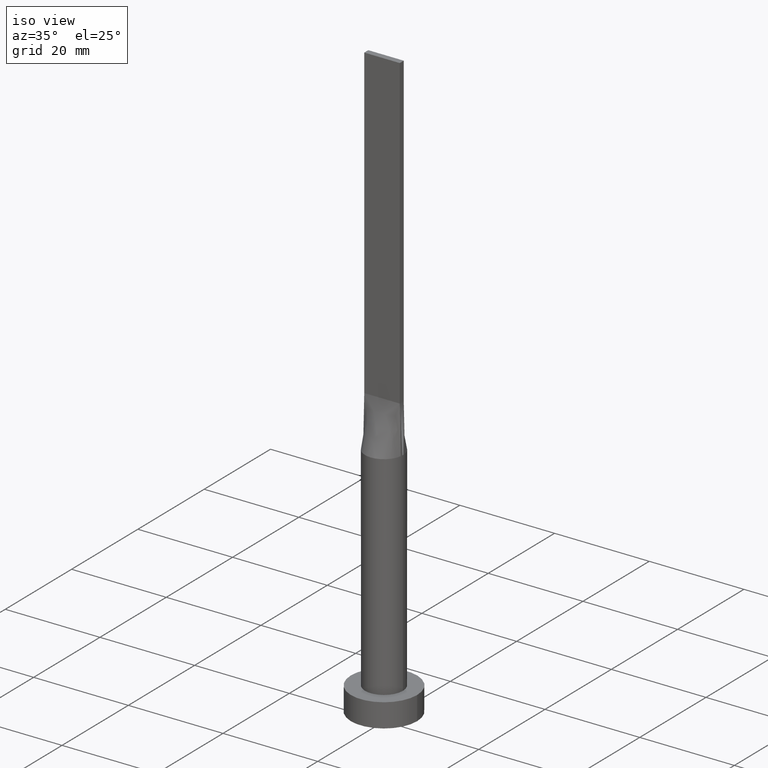
[diagram: clean part render]
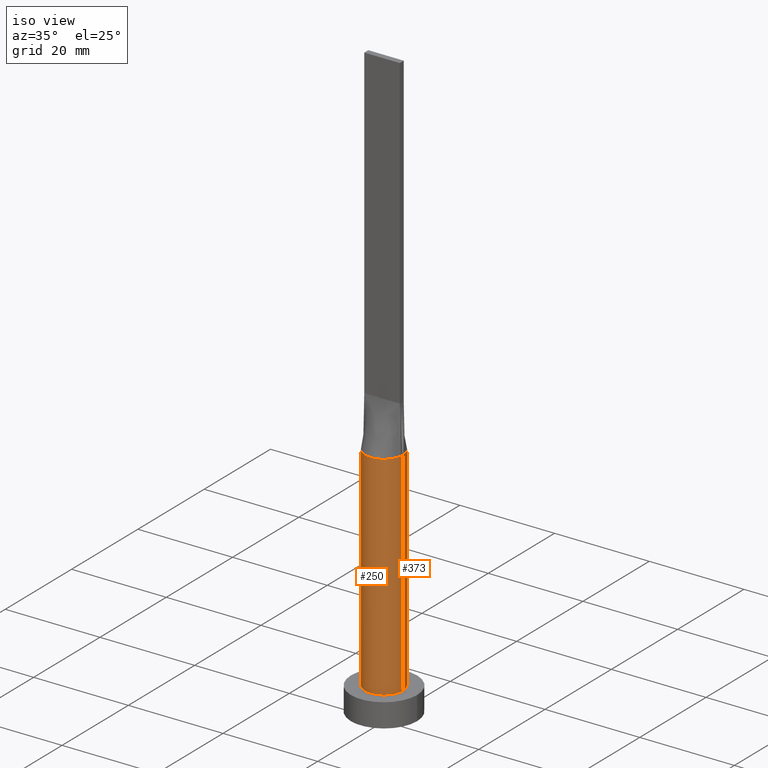
[diagram: same view with one multi-face feature highlighted, each face labeled with its STEP entity id]
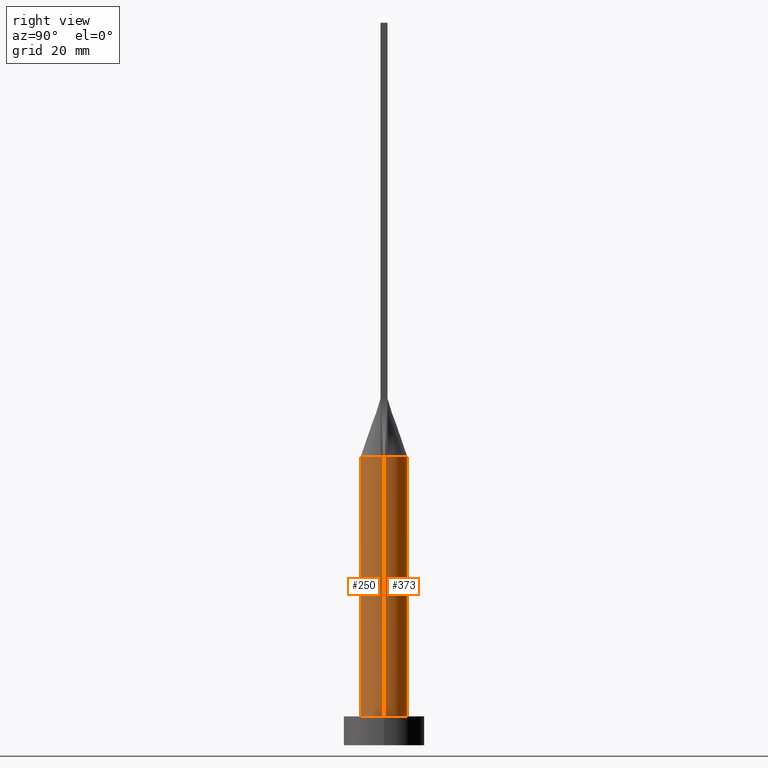
[diagram: same view with one multi-face feature highlighted, each face labeled with its STEP entity id]
A machine part, iso view. The highlighted faces form ONE feature: a constant-radius fillet chain: 2 tangent blend faces with common blend radius 4 mm. The faces share edges in the B-rep.
A second angle (right view) of the same feature is appended — it is thin or edge-on in the first view.
Their STEP definitions:
[1] entity #373 (Cylinder):
#1 = CARTESIAN_POINT ( 'NONE',  ( 4.000000000000000000, 4.898587196589411843E-16, 49.99999999999999289 ) ) ;
#15 = AXIS2_PLACEMENT_3D ( 'NONE', #472, #385, #81 ) ;
#22 = CARTESIAN_POINT ( 'NONE',  ( -3.999842262273348048, -9.740943882706924690E-16, 49.99999999999999289 ) ) ;
#25 = VERTEX_POINT ( 'NONE', #265 ) ;
#27 = DIRECTION ( 'NONE',  ( -1.000000000000000000, 0.000000000000000000, 0.000000000000000000 ) ) ;
#33 = CARTESIAN_POINT ( 'NONE',  ( 3.950097303404374038, 0.6320148730971578699, 49.99999999999999289 ) ) ;
#62 = CARTESIAN_POINT ( 'NONE',  ( 2.553164211252348714, 3.116528153703943538, 49.99999999999999289 ) ) ;
#64 = DIRECTION ( 'NONE',  ( -0.000000000000000000, -0.000000000000000000, -1.000000000000000000 ) ) ;
#67 = CARTESIAN_POINT ( 'NONE',  ( 3.461914487322979017, 2.043998057340944197, 49.99999999999997158 ) ) ;
#71 = EDGE_CURVE ( 'NONE', #577, #288, #165, .T. ) ;
#78 = CARTESIAN_POINT ( 'NONE',  ( -2.127794970397209884, 3.430476893735948440, 49.99999999999999289 ) ) ;
#81 = DIRECTION ( 'NONE',  ( 1.000000000000000000, 0.000000000000000000, 0.000000000000000000 ) ) ;
#105 = CARTESIAN_POINT ( 'NONE',  ( 3.950097303404374038, 0.6320148730971578699, 49.99999999999999289 ) ) ;
#117 = CARTESIAN_POINT ( 'NONE',  ( -3.800365609718893811, 1.311488165564686392, 49.99999999999999289 ) ) ;
#122 = VERTEX_POINT ( 'NONE', #22 ) ;
#124 = CARTESIAN_POINT ( 'NONE',  ( 0.5684794080625145130, 4.000000000000000000, 49.99999999999999289 ) ) ;
#128 = AXIS2_PLACEMENT_3D ( 'NONE', #399, #579, #540 ) ;
#138 = VECTOR ( 'NONE', #64, 1000.000000000000000 ) ;
#153 = EDGE_CURVE ( 'NONE', #122, #447, #239, .T. ) ;
#161 = DIRECTION ( 'NONE',  ( -0.000000000000000000, -0.000000000000000000, -1.000000000000000000 ) ) ;
#162 = CARTESIAN_POINT ( 'NONE',  ( -3.950102418235696522, 0.6320155757311000100, 49.99999999999999289 ) ) ;
#165 = CIRCLE ( 'NONE', #128, 4.000000000000000000 ) ;
#169 = ORIENTED_EDGE ( 'NONE', *, *, #153, .F. ) ;
#171 = ORIENTED_EDGE ( 'NONE', *, *, #449, .T. ) ;
#183 = VECTOR ( 'NONE', #438, 1000.000000000000000 ) ;
#190 = VERTEX_POINT ( 'NONE', #205 ) ;
#197 = CARTESIAN_POINT ( 'NONE',  ( 3.999842262273348936, 9.852009208038395466E-16, 49.99999999999999289 ) ) ;
#205 = CARTESIAN_POINT ( 'NONE',  ( 4.000000000000000000, 4.898587196589411843E-16, 5.000000000000000000 ) ) ;
#206 = CARTESIAN_POINT ( 'NONE',  ( -3.461914487322979905, 2.043998057340944197, 50.00000000000000711 ) ) ;
#211 = CARTESIAN_POINT ( 'NONE',  ( 0.000000000000000000, 0.000000000000000000, 49.99999999999999289 ) ) ;
#217 = EDGE_CURVE ( 'NONE', #288, #25, #434, .T. ) ;
#218 = AXIS2_PLACEMENT_3D ( 'NONE', #211, #523, #286 ) ;
#239 = LINE ( 'NONE', #457, #138 ) ;
#246 = CARTESIAN_POINT ( 'NONE',  ( -3.897760447583618504, 0.9569750049467115049, 50.00000000000001421 ) ) ;
#252 = ORIENTED_EDGE ( 'NONE', *, *, #257, .F. ) ;
#257 = EDGE_CURVE ( 'NONE', #25, #122, #439, .T. ) ;
#265 = CARTESIAN_POINT ( 'NONE',  ( -3.950102418235696522, 0.6320155757311000100, 49.99999999999999289 ) ) ;
#279 = CARTESIAN_POINT ( 'NONE',  ( 3.219262664220058134, 2.422342486356523938, 49.99999999999998579 ) ) ;
#280 = EDGE_CURVE ( 'NONE', #190, #447, #310, .T. ) ;
#285 = CARTESIAN_POINT ( 'NONE',  ( 3.897760447583618948, 0.9569750049467118380, 50.00000000000000711 ) ) ;
#286 = DIRECTION ( 'NONE',  ( 1.000000000000000000, 0.000000000000000000, 0.000000000000000000 ) ) ;
#288 = VERTEX_POINT ( 'NONE', #33 ) ;
#291 = ORIENTED_EDGE ( 'NONE', *, *, #71, .F. ) ;
#310 = CIRCLE ( 'NONE', #15, 4.000000000000000000 ) ;
#340 = FACE_OUTER_BOUND ( 'NONE', #498, .T. ) ;
#373 = ADVANCED_FACE ( 'NONE', ( #340 ), #559, .T. ) ;
#379 = CARTESIAN_POINT ( 'NONE',  ( -1.134810363096319996, 3.874001625491799938, 50.00000000000000711 ) ) ;
#385 = DIRECTION ( 'NONE',  ( 0.000000000000000000, 0.000000000000000000, 1.000000000000000000 ) ) ;
#398 = CARTESIAN_POINT ( 'NONE',  ( -4.000000000000000000, 0.000000000000000000, 5.000000000000000000 ) ) ;
#399 = CARTESIAN_POINT ( 'NONE',  ( 0.000000000000000000, 0.000000000000000000, 49.99999999999999289 ) ) ;
#415 = CARTESIAN_POINT ( 'NONE',  ( 1.134810363096318664, 3.874001625491799050, 49.99999999999999289 ) ) ;
#425 = CARTESIAN_POINT ( 'NONE',  ( 0.000000000000000000, 0.000000000000000000, 49.99999999999999289 ) ) ;
#434 = B_SPLINE_CURVE_WITH_KNOTS ( 'NONE', 3,
 ( #105, #285, #466, #67, #279, #62, #461, #415, #124, #483, #379, #78, #560, #520, #206, #117, #246, #162 ),
 .UNSPECIFIED., .F., .F.,
 ( 4, 2, 2, 2, 2, 2, 2, 2, 4 ),
 ( 0.000000000000000000, 0.1249999999999999445, 0.2499999999999998890, 0.3749999999999998335, 0.4999999999999997780, 0.6249999999999997780, 0.7499999999999998890, 0.8749999999999998890, 1.000000000000000000 ),
 .UNSPECIFIED. ) ;
#438 = DIRECTION ( 'NONE',  ( -0.000000000000000000, -0.000000000000000000, -1.000000000000000000 ) ) ;
#439 = CIRCLE ( 'NONE', #218, 4.000000000000000000 ) ;
#447 = VERTEX_POINT ( 'NONE', #398 ) ;
#449 = EDGE_CURVE ( 'NONE', #577, #190, #486, .T. ) ;
#451 = AXIS2_PLACEMENT_3D ( 'NONE', #425, #161, #27 ) ;
#457 = CARTESIAN_POINT ( 'NONE',  ( -4.000000000000000000, 0.000000000000000000, 49.99999999999999289 ) ) ;
#461 = CARTESIAN_POINT ( 'NONE',  ( 2.127794970397208107, 3.430476893735948885, 49.99999999999998579 ) ) ;
#464 = ORIENTED_EDGE ( 'NONE', *, *, #280, .T. ) ;
#466 = CARTESIAN_POINT ( 'NONE',  ( 3.800365609718893367, 1.311488165564687058, 49.99999999999998579 ) ) ;
#472 = CARTESIAN_POINT ( 'NONE',  ( 0.000000000000000000, 0.000000000000000000, 5.000000000000000000 ) ) ;
#483 = CARTESIAN_POINT ( 'NONE',  ( -0.5684794080625158452, 3.999999999999999112, 49.99999999999999289 ) ) ;
#486 = LINE ( 'NONE', #1, #183 ) ;
#498 = EDGE_LOOP ( 'NONE', ( #291, #171, #464, #169, #252, #545 ) ) ;
#520 = CARTESIAN_POINT ( 'NONE',  ( -3.219262664220059023, 2.422342486356523938, 49.99999999999998579 ) ) ;
#523 = DIRECTION ( 'NONE',  ( 0.000000000000000000, 0.000000000000000000, 1.000000000000000000 ) ) ;
#540 = DIRECTION ( 'NONE',  ( 1.000000000000000000, 0.000000000000000000, 0.000000000000000000 ) ) ;
#545 = ORIENTED_EDGE ( 'NONE', *, *, #217, .F. ) ;
#559 = CYLINDRICAL_SURFACE ( 'NONE', #451, 4.000000000000000000 ) ;
#560 = CARTESIAN_POINT ( 'NONE',  ( -2.553164211252348714, 3.116528153703943538, 49.99999999999999289 ) ) ;
#577 = VERTEX_POINT ( 'NONE', #197 ) ;
#579 = DIRECTION ( 'NONE',  ( 0.000000000000000000, 0.000000000000000000, 1.000000000000000000 ) ) ;
[2] entity #250 (Cylinder):
#1 = CARTESIAN_POINT ( 'NONE',  ( 4.000000000000000000, 4.898587196589411843E-16, 49.99999999999999289 ) ) ;
#6 = DIRECTION ( 'NONE',  ( 1.000000000000000000, 0.000000000000000000, 0.000000000000000000 ) ) ;
#22 = CARTESIAN_POINT ( 'NONE',  ( -3.999842262273348048, -9.740943882706924690E-16, 49.99999999999999289 ) ) ;
#28 = VERTEX_POINT ( 'NONE', #404 ) ;
#37 = AXIS2_PLACEMENT_3D ( 'NONE', #353, #452, #174 ) ;
#53 = VERTEX_POINT ( 'NONE', #192 ) ;
#64 = DIRECTION ( 'NONE',  ( -0.000000000000000000, -0.000000000000000000, -1.000000000000000000 ) ) ;
#69 = DIRECTION ( 'NONE',  ( 1.000000000000000000, 1.065814103640150279E-14, 0.000000000000000000 ) ) ;
#76 = AXIS2_PLACEMENT_3D ( 'NONE', #315, #448, #358 ) ;
#82 = ORIENTED_EDGE ( 'NONE', *, *, #334, .F. ) ;
#91 = ORIENTED_EDGE ( 'NONE', *, *, #514, .F. ) ;
#99 = AXIS2_PLACEMENT_3D ( 'NONE', #136, #269, #6 ) ;
#122 = VERTEX_POINT ( 'NONE', #22 ) ;
#136 = CARTESIAN_POINT ( 'NONE',  ( 0.000000000000000000, 0.000000000000000000, 49.99999999999999289 ) ) ;
#138 = VECTOR ( 'NONE', #64, 1000.000000000000000 ) ;
#153 = EDGE_CURVE ( 'NONE', #122, #447, #239, .T. ) ;
#173 = CIRCLE ( 'NONE', #99, 4.000000000000000000 ) ;
#174 = DIRECTION ( 'NONE',  ( 1.000000000000000000, 0.000000000000000000, 0.000000000000000000 ) ) ;
#183 = VECTOR ( 'NONE', #438, 1000.000000000000000 ) ;
#189 = ORIENTED_EDGE ( 'NONE', *, *, #153, .T. ) ;
#190 = VERTEX_POINT ( 'NONE', #205 ) ;
#192 = CARTESIAN_POINT ( 'NONE',  ( -3.950111798046394007, -0.6320171791297864994, 49.99999999999999289 ) ) ;
#197 = CARTESIAN_POINT ( 'NONE',  ( 3.999842262273348936, 9.852009208038395466E-16, 49.99999999999999289 ) ) ;
#205 = CARTESIAN_POINT ( 'NONE',  ( 4.000000000000000000, 4.898587196589411843E-16, 5.000000000000000000 ) ) ;
#213 = ORIENTED_EDGE ( 'NONE', *, *, #467, .F. ) ;
#239 = LINE ( 'NONE', #457, #138 ) ;
#250 = ADVANCED_FACE ( 'NONE', ( #301 ), #469, .T. ) ;
#253 = AXIS2_PLACEMENT_3D ( 'NONE', #290, #343, #333 ) ;
#269 = DIRECTION ( 'NONE',  ( 0.000000000000000000, 0.000000000000000000, 1.000000000000000000 ) ) ;
#290 = CARTESIAN_POINT ( 'NONE',  ( 0.000000000000000000, 0.000000000000000000, 49.99999999999999289 ) ) ;
#301 = FACE_OUTER_BOUND ( 'NONE', #475, .T. ) ;
#311 = CIRCLE ( 'NONE', #478, 4.000000000000000000 ) ;
#315 = CARTESIAN_POINT ( 'NONE',  ( 0.000000000000000000, 0.000000000000000000, 49.99999999999999289 ) ) ;
#333 = DIRECTION ( 'NONE',  ( -1.000000000000000000, 0.000000000000000000, 0.000000000000000000 ) ) ;
#334 = EDGE_CURVE ( 'NONE', #28, #577, #311, .T. ) ;
#335 = CIRCLE ( 'NONE', #76, 4.000000000000000000 ) ;
#337 = CARTESIAN_POINT ( 'NONE',  ( 0.000000000000000000, 0.000000000000000000, 49.99999999999999289 ) ) ;
#343 = DIRECTION ( 'NONE',  ( -0.000000000000000000, -0.000000000000000000, -1.000000000000000000 ) ) ;
#353 = CARTESIAN_POINT ( 'NONE',  ( 0.000000000000000000, 0.000000000000000000, 5.000000000000000000 ) ) ;
#358 = DIRECTION ( 'NONE',  ( 1.000000000000000000, 0.000000000000000000, 0.000000000000000000 ) ) ;
#398 = CARTESIAN_POINT ( 'NONE',  ( -4.000000000000000000, 0.000000000000000000, 5.000000000000000000 ) ) ;
#404 = CARTESIAN_POINT ( 'NONE',  ( 3.950116941581656604, -0.6320178829360036943, 49.99999999999999289 ) ) ;
#438 = DIRECTION ( 'NONE',  ( -0.000000000000000000, -0.000000000000000000, -1.000000000000000000 ) ) ;
#447 = VERTEX_POINT ( 'NONE', #398 ) ;
#448 = DIRECTION ( 'NONE',  ( 0.000000000000000000, 0.000000000000000000, 1.000000000000000000 ) ) ;
#449 = EDGE_CURVE ( 'NONE', #577, #190, #486, .T. ) ;
#452 = DIRECTION ( 'NONE',  ( 0.000000000000000000, 0.000000000000000000, 1.000000000000000000 ) ) ;
#455 = ORIENTED_EDGE ( 'NONE', *, *, #505, .T. ) ;
#457 = CARTESIAN_POINT ( 'NONE',  ( -4.000000000000000000, 0.000000000000000000, 49.99999999999999289 ) ) ;
#459 = CIRCLE ( 'NONE', #37, 4.000000000000000000 ) ;
#467 = EDGE_CURVE ( 'NONE', #122, #53, #173, .T. ) ;
#469 = CYLINDRICAL_SURFACE ( 'NONE', #253, 4.000000000000000000 ) ;
#474 = DIRECTION ( 'NONE',  ( 0.000000000000000000, 0.000000000000000000, 1.000000000000000000 ) ) ;
#475 = EDGE_LOOP ( 'NONE', ( #526, #82, #91, #213, #189, #455 ) ) ;
#478 = AXIS2_PLACEMENT_3D ( 'NONE', #337, #474, #69 ) ;
#486 = LINE ( 'NONE', #1, #183 ) ;
#505 = EDGE_CURVE ( 'NONE', #447, #190, #459, .T. ) ;
#514 = EDGE_CURVE ( 'NONE', #53, #28, #335, .T. ) ;
#526 = ORIENTED_EDGE ( 'NONE', *, *, #449, .F. ) ;
#577 = VERTEX_POINT ( 'NONE', #197 ) ;